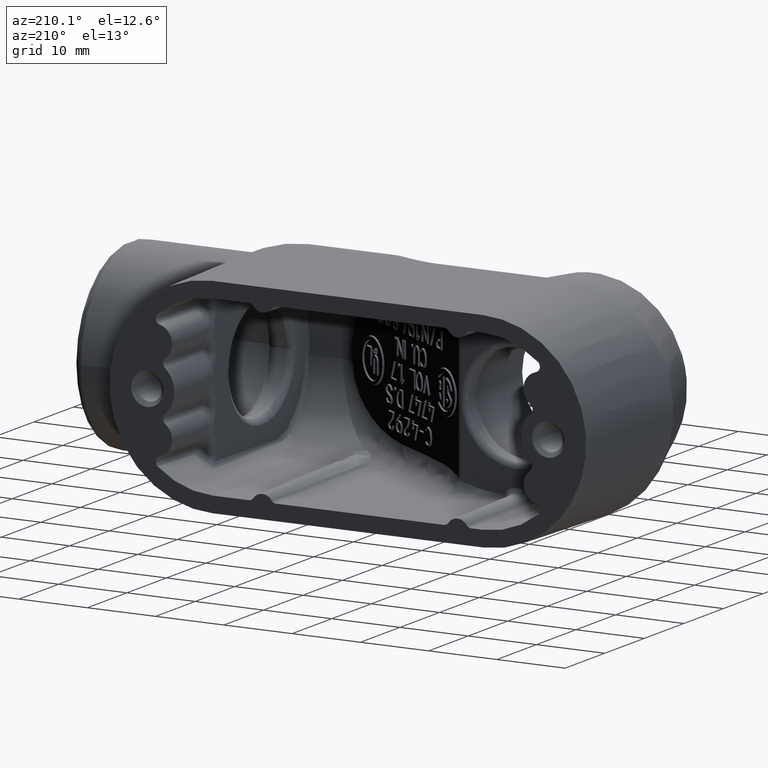
[diagram: clean part render]
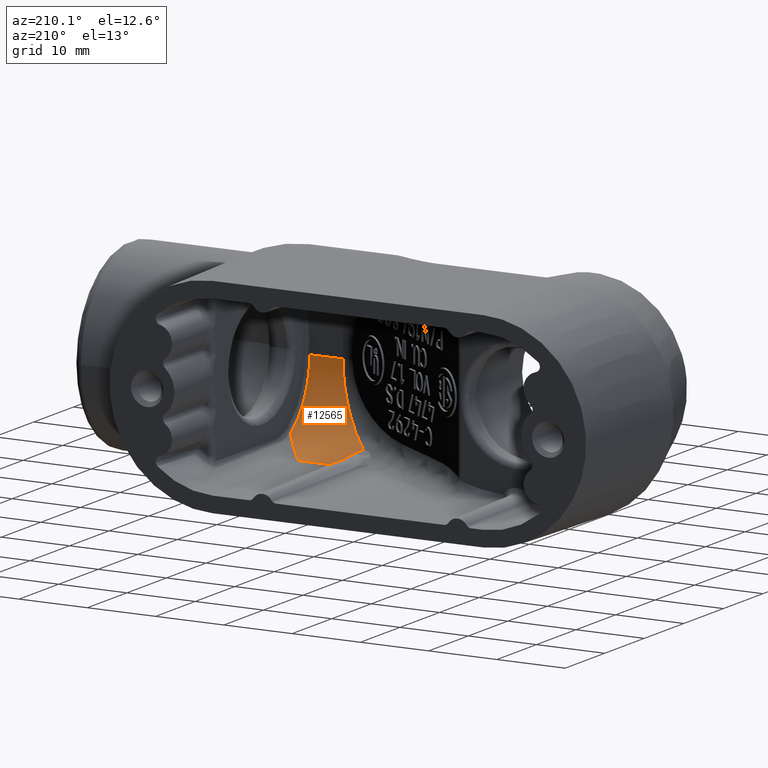
[diagram: same view with one face highlighted and labeled with its STEP entity id]
A machine part, auxiliary view. The second image highlights one B-rep face of the part: STEP entity #12565.
In plain terms, the highlighted cylindrical surface (partial cylindrical patch) has radius 11.1125 mm, axis along (1, 0, 0).
Its self-contained STEP definition (entity closure, byte-faithful):
#128=CYLINDRICAL_SURFACE('',#13354,0.4375);
#714=FACE_OUTER_BOUND('',#1512,.T.);
#1512=EDGE_LOOP('',(#8826,#8827,#8828,#8829,#8830,#8831));
#2351=LINE('',#22535,#3081);
#2352=LINE('',#22548,#3082);
#3081=VECTOR('',#14125,0.393700787401575);
#3082=VECTOR('',#14128,0.393700787401575);
#4088=B_SPLINE_CURVE_WITH_KNOTS('',3,(#22260,#22261,#22262,#22263,#22264),
 .UNSPECIFIED.,.F.,.F.,(4,1,4),(1.79230157332735,2.24176269663609,2.84104419438107),
 .UNSPECIFIED.);
#4103=B_SPLINE_CURVE_WITH_KNOTS('',3,(#22541,#22542,#22543,#22544,#22545,
#22546),.UNSPECIFIED.,.F.,.F.,(4,2,4),(-1.95968648824065,-1.95816164856533,
-1.31560528073776),.UNSPECIFIED.);
#4104=B_SPLINE_CURVE_WITH_KNOTS('',3,(#22550,#22551,#22552,#22553,#22554,
#22555,#22556,#22557),.UNSPECIFIED.,.F.,.F.,(4,1,1,1,1,4),(-1.13096382042223,
-0.969397560361914,-0.807831300301596,-0.727048170271436,-0.646265040241277,
-0.616024760116671),.UNSPECIFIED.);
#4105=B_SPLINE_CURVE_WITH_KNOTS('',3,(#22558,#22559,#22560,#22561,#22562,
#22563,#22564),.UNSPECIFIED.,.F.,.F.,(4,1,1,1,4),(-5.61088077105784,-5.48049132709938,
-4.97863450216951,-4.72770608970457,-4.47677767723963),.UNSPECIFIED.);
#5262=VERTEX_POINT('',#21919);
#5269=VERTEX_POINT('',#22181);
#5271=VERTEX_POINT('',#22247);
#5283=VERTEX_POINT('',#22534);
#5284=VERTEX_POINT('',#22547);
#5285=VERTEX_POINT('',#22549);
#6652=EDGE_CURVE('',#5269,#5271,#4088,.T.);
#6670=EDGE_CURVE('',#5271,#5283,#2351,.T.);
#6672=EDGE_CURVE('',#5262,#5269,#4103,.T.);
#6673=EDGE_CURVE('',#5284,#5262,#2352,.T.);
#6674=EDGE_CURVE('',#5284,#5285,#4104,.T.);
#6675=EDGE_CURVE('',#5285,#5283,#4105,.T.);
#8826=ORIENTED_EDGE('',*,*,#6652,.F.);
#8827=ORIENTED_EDGE('',*,*,#6672,.F.);
#8828=ORIENTED_EDGE('',*,*,#6673,.F.);
#8829=ORIENTED_EDGE('',*,*,#6674,.T.);
#8830=ORIENTED_EDGE('',*,*,#6675,.T.);
#8831=ORIENTED_EDGE('',*,*,#6670,.F.);
#12565=ADVANCED_FACE('',(#714),#128,.F.);
#13354=AXIS2_PLACEMENT_3D('',#22540,#14126,#14127);
#14125=DIRECTION('',(-1.,0.,0.));
#14126=DIRECTION('center_axis',(1.,0.,0.));
#14127=DIRECTION('ref_axis',(0.,-0.713250449154182,-0.700909264299851));
#14128=DIRECTION('',(1.,0.,0.));
#21919=CARTESIAN_POINT('',(0.777993249839094,-0.00763542781631171,-0.489139012078528));
#22181=CARTESIAN_POINT('',(0.960177803827555,-0.242250502614255,-0.416014503400774));
#22247=CARTESIAN_POINT('',(0.962198024198365,-0.4375,-0.0517056454476068));
#22260=CARTESIAN_POINT('Ctrl Pts',(0.960177803827554,-0.242250502614255,
-0.416014503400774));
#22261=CARTESIAN_POINT('Ctrl Pts',(0.960440614563675,-0.293847225970236,
-0.381704790931905));
#22262=CARTESIAN_POINT('Ctrl Pts',(0.961177043820803,-0.39653625767247,
-0.276087296283778));
#22263=CARTESIAN_POINT('Ctrl Pts',(0.961946473511982,-0.4375,-0.133282258689519));
#22264=CARTESIAN_POINT('Ctrl Pts',(0.962198024198365,-0.4375,-0.0517056454476068));
#22534=CARTESIAN_POINT('',(0.770280919018762,-0.4375,-0.0517056454476068));
#22535=CARTESIAN_POINT('',(-0.640996624919547,-0.4375,-0.0517056454476068));
#22540=CARTESIAN_POINT('Origin',(-0.640996624919547,-1.74838271594513E-16,
-0.0517056454476068));
#22541=CARTESIAN_POINT('Ctrl Pts',(0.777993249839094,-0.00763542781631153,
-0.489139012078528));
#22542=CARTESIAN_POINT('Ctrl Pts',(0.778140056152416,-0.00782577812915266,
-0.489135689501458));
#22543=CARTESIAN_POINT('Ctrl Pts',(0.778286982206365,-0.00801630041349841,
-0.489132305481423));
#22544=CARTESIAN_POINT('Ctrl Pts',(0.84022398137716,-0.0883138211667706,
-0.487585968290876));
#22545=CARTESIAN_POINT('Ctrl Pts',(0.902676863460707,-0.169325799299756,
-0.464506450948214));
#22546=CARTESIAN_POINT('Ctrl Pts',(0.960177803827555,-0.242250502614255,
-0.416014503400774));
#22547=CARTESIAN_POINT('',(0.577400350370723,-0.00763542781631527,-0.489139012078528));
#22548=CARTESIAN_POINT('',(-0.640996624919547,-0.00763542781631171,-0.489139012078528));
#22549=CARTESIAN_POINT('',(0.511359434802258,-0.195723906329535,-0.442983554983921));
#22550=CARTESIAN_POINT('Ctrl Pts',(0.577400350370723,-0.00763542781631881,
-0.489139012078528));
#22551=CARTESIAN_POINT('Ctrl Pts',(0.577580178725687,-0.0304650441722828,
-0.488740519642748));
#22552=CARTESIAN_POINT('Ctrl Pts',(0.575446786028534,-0.076060237546556,
-0.484373161645888));
#22553=CARTESIAN_POINT('Ctrl Pts',(0.564403033785301,-0.130710349075971,
-0.470170495782951));
#22554=CARTESIAN_POINT('Ctrl Pts',(0.545338785655113,-0.169107161034192,
-0.455553205291308));
#22555=CARTESIAN_POINT('Ctrl Pts',(0.528085911705351,-0.187573319364882,
-0.447020866977241));
#22556=CARTESIAN_POINT('Ctrl Pts',(0.515031300701798,-0.194230046775406,
-0.443738681682812));
#22557=CARTESIAN_POINT('Ctrl Pts',(0.511332493362376,-0.195672030974121,
-0.443018034771997));
#22558=CARTESIAN_POINT('Ctrl Pts',(0.51135609147838,-0.195720784395549,
-0.442970256237557));
#22559=CARTESIAN_POINT('Ctrl Pts',(0.525068639260825,-0.208525307925686,
-0.436516988893628));
#22560=CARTESIAN_POINT('Ctrl Pts',(0.591016637727392,-0.270106329303181,
-0.401704404317102));
#22561=CARTESIAN_POINT('Ctrl Pts',(0.678677877123142,-0.351962773512707,
-0.328198460281964));
#22562=CARTESIAN_POINT('Ctrl Pts',(0.753668797238263,-0.421987907892917,
-0.18908875401909));
#22563=CARTESIAN_POINT('Ctrl Pts',(0.770280919018762,-0.4375,-0.097814567579709));
#22564=CARTESIAN_POINT('Ctrl Pts',(0.770280919018762,-0.4375,-0.0517056454476068));